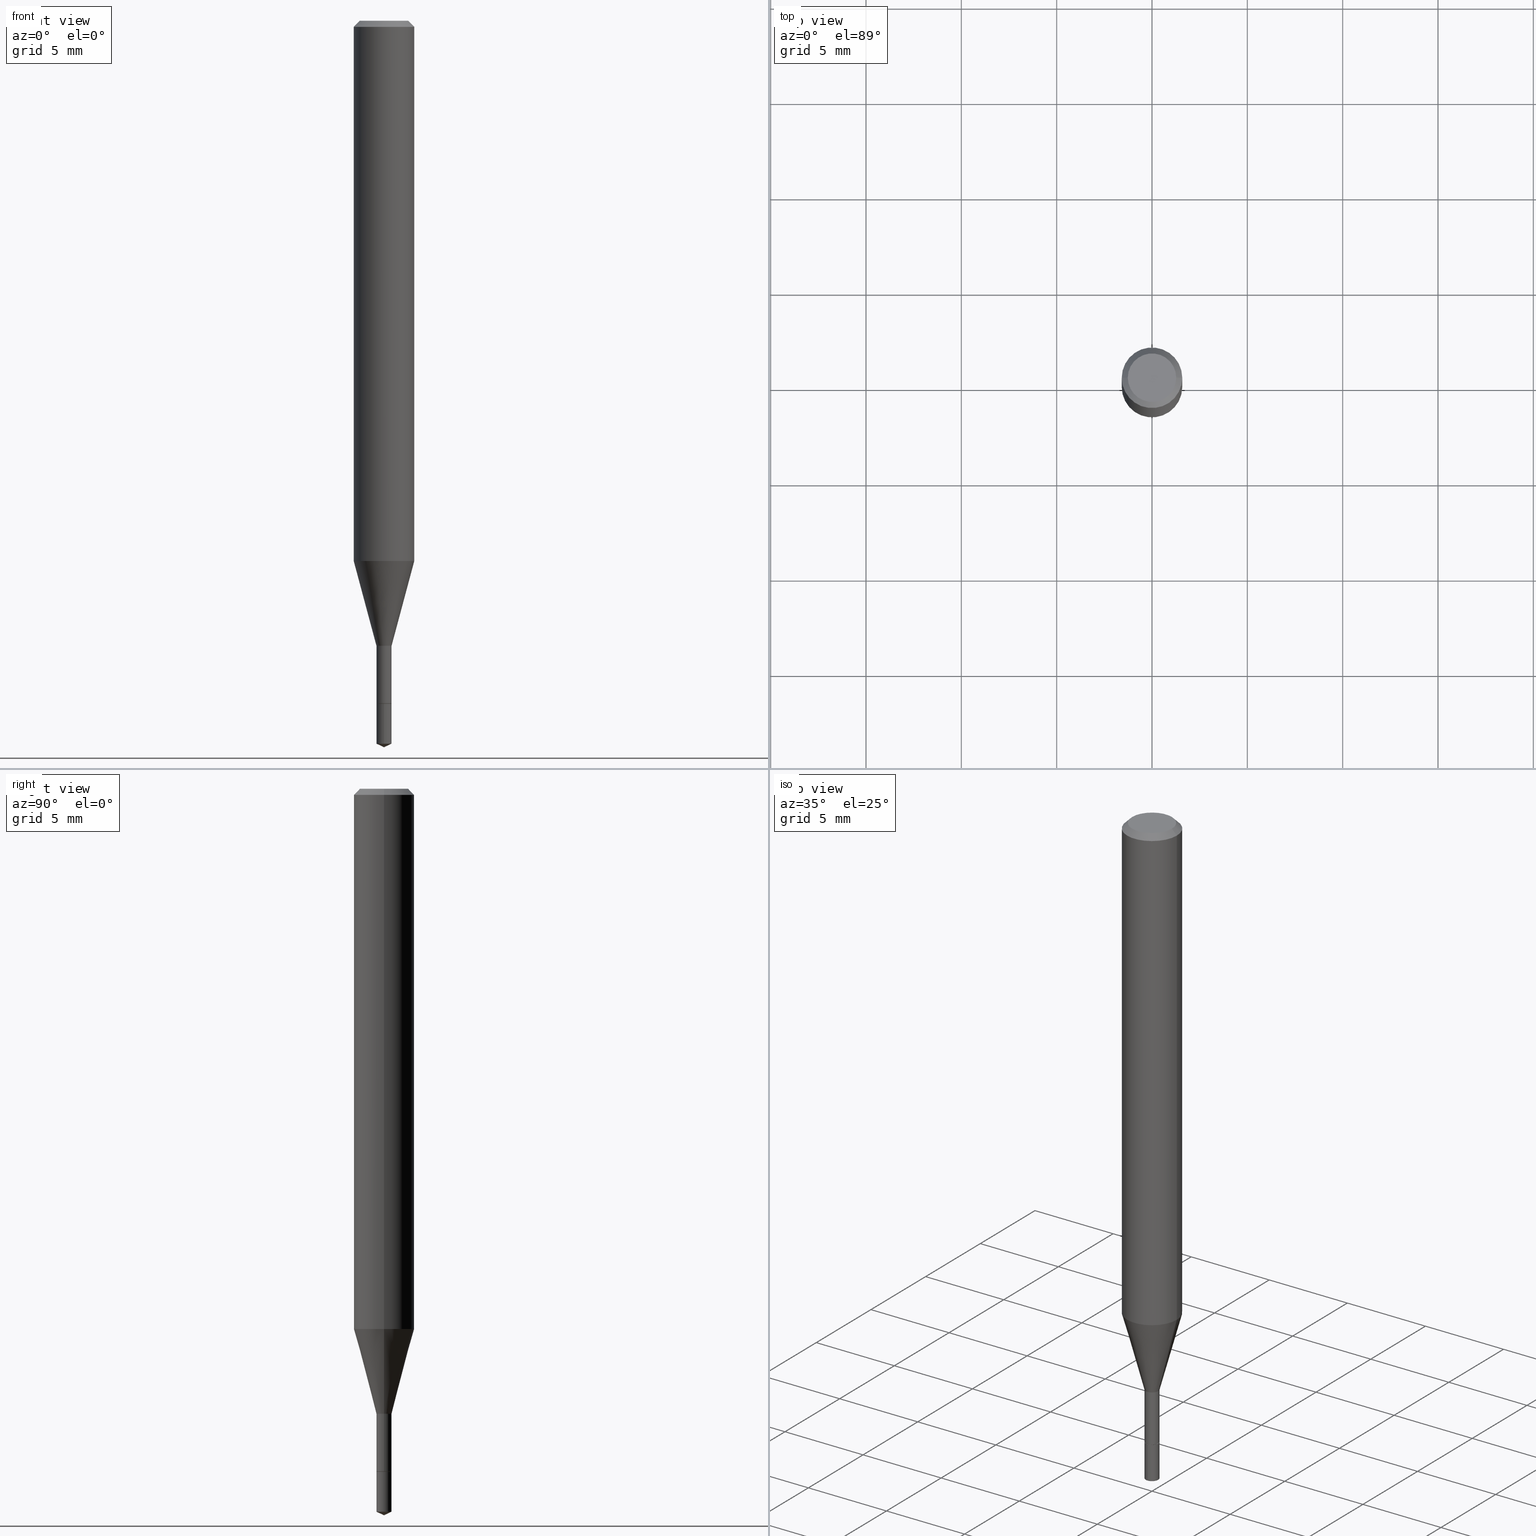
[diagram: canonical four-view strip — front | top / right | iso, engineering-drawing reading convention]
A machine part, canonical four-view strip (front | top / right | iso — engineering-drawing reading convention). The complete STEP part file that produces these views, byte-faithful:
ISO-10303-21;
HEADER;
FILE_DESCRIPTION (( 'STEP AP203' ),
    '1' );
FILE_NAME ('07029.STEP',
    '2024-04-23T19:19:45',
    ( '' ),
    ( '' ),
    'SwSTEP 2.0',
    'SolidWorks 2023',
    '' );
FILE_SCHEMA (( 'CONFIG_CONTROL_DESIGN' ));
ENDSEC;

DATA;
#1 = FACE_OUTER_BOUND ( 'NONE', #448, .T. ) ;
#2 = VERTEX_POINT ( 'NONE', #333 ) ;
#3 = PERSON_AND_ORGANIZATION ( #251, #125 ) ;
#4 = DIRECTION ( 'NONE',  ( 1.000000000000000000, -6.982962677686286432E-15, 0.000000000000000000 ) ) ;
#5 = FACE_OUTER_BOUND ( 'NONE', #71, .T. ) ;
#6 = ORIENTED_EDGE ( 'NONE', *, *, #415, .T. ) ;
#7 = CONICAL_SURFACE ( 'NONE', #182, 84.42940631927521622, 1.134464013796320003 ) ;
#8 = CYLINDRICAL_SURFACE ( 'NONE', #478, 0.01559999999999998888 ) ;
#9 = ORIENTED_EDGE ( 'NONE', *, *, #43, .F. ) ;
#10 = EDGE_CURVE ( 'NONE', #364, #250, #381, .T. ) ;
#11 = CARTESIAN_POINT ( 'NONE',  ( 3.056836007731441853E-31, -4.364351673553962300E-17, -0.01250000000000008570 ) ) ;
#12 = FACE_OUTER_BOUND ( 'NONE', #239, .T. ) ;
#13 = AXIS2_PLACEMENT_3D ( 'NONE', #198, #393, #49 ) ;
#14 = APPROVAL ( #88, 'UNSPECIFIED' ) ;
#15 = FACE_OUTER_BOUND ( 'NONE', #119, .T. ) ;
#16 = CARTESIAN_POINT ( 'NONE',  ( 1.946643104841063088E-47, -2.779290439833033990E-33, -7.960204194457798443E-19 ) ) ;
#17 = APPROVAL_DATE_TIME ( #354, #371 ) ;
#18 = AXIS2_PLACEMENT_3D ( 'NONE', #65, #101, #410 ) ;
#19 = ORIENTED_EDGE ( 'NONE', *, *, #292, .T. ) ;
#20 = EDGE_CURVE ( 'NONE', #477, #180, #115, .T. ) ;
#21 = APPLICATION_CONTEXT ( 'configuration controlled 3d designs of mechanical parts and assemblies' ) ;
#22 = CARTESIAN_POINT ( 'NONE',  ( 0.01559999999999998367, -4.615040033682871428E-15, -1.290600000000000414 ) ) ;
#23 = APPROVAL_DATE_TIME ( #210, #14 ) ;
#24 = FACE_OUTER_BOUND ( 'NONE', #97, .T. ) ;
#25 = CIRCLE ( 'NONE', #382, 0.06250000000000000000 ) ;
#26 = EDGE_CURVE ( 'NONE', #30, #456, #44, .T. ) ;
#27 = VERTEX_POINT ( 'NONE', #56 ) ;
#28 = LOCAL_TIME ( 15, 19, 45.00000000000000000, #362 ) ;
#29 = DIRECTION ( 'NONE',  ( 6.982962677686265922E-15, 1.000000000000000000, -3.505510882807285658E-15 ) ) ;
#30 = VERTEX_POINT ( 'NONE', #208 ) ;
#31 = EDGE_LOOP ( 'NONE', ( #106, #6, #225, #54 ) ) ;
#32 = DIRECTION ( 'NONE',  ( -6.982962677686265922E-15, -1.000000000000000000, 0.000000000000000000 ) ) ;
#33 = ORIENTED_EDGE ( 'NONE', *, *, #323, .T. ) ;
#34 = DESIGN_CONTEXT ( 'detailed design', #21, 'design' ) ;
#35 = ADVANCED_FACE ( 'NONE', ( #12 ), #465, .F. ) ;
#36 = CARTESIAN_POINT ( 'NONE',  ( 3.056836007731441853E-31, -4.364351673553962300E-17, -0.01250000000000008570 ) ) ;
#37 = VECTOR ( 'NONE', #423, 39.37007874015748143 ) ;
#38 = CARTESIAN_POINT ( 'NONE',  ( 3.681377211915869878E-29, -5.218703010232054902E-15, -1.500000000000000444 ) ) ;
#39 = ORIENTED_EDGE ( 'NONE', *, *, #26, .F. ) ;
#40 = DIRECTION ( 'NONE',  ( 6.439704144417041397E-15, 0.9063077870366539335, 0.4226182617406910591 ) ) ;
#41 = DIRECTION ( 'NONE',  ( -2.445468806185136877E-29, 3.491481338843145188E-15, 1.000000000000000000 ) ) ;
#42 = CARTESIAN_POINT ( 'NONE',  ( 2.728083852494474973E-29, -3.894980724224650610E-15, -1.115566817125019927 ) ) ;
#43 = EDGE_CURVE ( 'NONE', #400, #358, #390, .T. ) ;
#44 = CIRCLE ( 'NONE', #133, 0.01560000000000000102 ) ;
#45 = VECTOR ( 'NONE', #446, 39.37007874015748854 ) ;
#46 = SECURITY_CLASSIFICATION ( '', '', #342 ) ;
#47 = DIRECTION ( 'NONE',  ( -2.445468806185136597E-29, 3.491481338843145583E-15, 1.000000000000000000 ) ) ;
#48 = EDGE_LOOP ( 'NONE', ( #260, #274, #176, #139 ) ) ;
#49 = DIRECTION ( 'NONE',  ( 1.000000000000000000, -6.982962677686248567E-15, 0.000000000000000000 ) ) ;
#50 = PERSON_AND_ORGANIZATION ( #251, #125 ) ;
#51 = AXIS2_PLACEMENT_3D ( 'NONE', #42, #87, #363 ) ;
#52 = CIRCLE ( 'NONE', #290, 0.04999999999999999584 ) ;
#53 = ORIENTED_EDGE ( 'NONE', *, *, #339, .T. ) ;
#54 = ORIENTED_EDGE ( 'NONE', *, *, #140, .F. ) ;
#55 = CARTESIAN_POINT ( 'NONE',  ( 0.000000000000000000, 0.000000000000000000, 0.000000000000000000 ) ) ;
#56 = CARTESIAN_POINT ( 'NONE',  ( -0.06250000000000000000, -1.525222910630031483E-15, -0.01250000000000008570 ) ) ;
#57 = DIRECTION ( 'NONE',  ( 1.000000000000000000, -6.982962677686248567E-15, 0.000000000000000000 ) ) ;
#58 = ADVANCED_FACE ( 'NONE', ( #315 ), #367, .T. ) ;
#59 = AXIS2_PLACEMENT_3D ( 'NONE', #60, #262, #29 ) ;
#60 = CARTESIAN_POINT ( 'NONE',  ( 3.448111016721043790E-29, -4.922988687768837279E-15, -1.410000000000000586 ) ) ;
#61 = ORIENTED_EDGE ( 'NONE', *, *, #386, .F. ) ;
#62 = LINE ( 'NONE', #375, #412 ) ;
#63 = APPROVAL ( #264, 'UNSPECIFIED' ) ;
#64 = ORIENTED_EDGE ( 'NONE', *, *, #440, .T. ) ;
#65 = CARTESIAN_POINT ( 'NONE',  ( 3.893286209682126177E-47, -5.558580879666067980E-33, -1.592040838891559689E-18 ) ) ;
#66 = AXIS2_PLACEMENT_3D ( 'NONE', #253, #215, #370 ) ;
#67 = LINE ( 'NONE', #288, #309 ) ;
#68 = ADVANCED_BREP_SHAPE_REPRESENTATION ( '07029', ( #186, #196, #245 ), #221 ) ;
#69 = EDGE_LOOP ( 'NONE', ( #408, #80, #295, #33 ) ) ;
#70 = DIRECTION ( 'NONE',  ( -2.435672027996482102E-29, 3.505510882807285264E-15, 1.000000000000000000 ) ) ;
#71 = EDGE_LOOP ( 'NONE', ( #261, #312 ) ) ;
#72 = DATE_AND_TIME ( #99, #356 ) ;
#73 = ADVANCED_FACE ( 'NONE', ( #444 ), #100, .T. ) ;
#74 = DIRECTION ( 'NONE',  ( 1.000000000000000000, -6.982962677686266711E-15, 4.876176775795935232E-29 ) ) ;
#75 = CARTESIAN_POINT ( 'NONE',  ( 0.01559999999999998367, -4.615040033682871428E-15, -1.290600000000000414 ) ) ;
#76 = CARTESIAN_POINT ( 'NONE',  ( 3.446888282317950988E-29, -4.921242947099414987E-15, -1.409500000000000419 ) ) ;
#77 = CC_DESIGN_PERSON_AND_ORGANIZATION_ASSIGNMENT ( #451, #152, ( #331 ) ) ;
#78 = ORIENTED_EDGE ( 'NONE', *, *, #308, .T. ) ;
#79 = LINE ( 'NONE', #159, #257 ) ;
#80 = ORIENTED_EDGE ( 'NONE', *, *, #346, .F. ) ;
#81 = CONICAL_SURFACE ( 'NONE', #191, 0.01559999999999998367, 0.2617993877991499629 ) ;
#82 = FACE_OUTER_BOUND ( 'NONE', #344, .T. ) ;
#83 = ORIENTED_EDGE ( 'NONE', *, *, #402, .T. ) ;
#84 = ADVANCED_FACE ( 'NONE', ( #177 ), #161, .T. ) ;
#85 = ORIENTED_EDGE ( 'NONE', *, *, #43, .T. ) ;
#86 = DIRECTION ( 'NONE',  ( -2.445468806185136597E-29, 3.491481338843145583E-15, 1.000000000000000000 ) ) ;
#87 = DIRECTION ( 'NONE',  ( -2.445468806185136597E-29, 3.491481338843145583E-15, 1.000000000000000000 ) ) ;
#88 = APPROVAL_STATUS ( 'not_yet_approved' ) ;
#89 = VECTOR ( 'NONE', #40, 39.37007874015748854 ) ;
#90 = APPLICATION_PROTOCOL_DEFINITION ( 'international standard', 'config_control_design', 1994, #256 ) ;
#91 = EDGE_CURVE ( 'NONE', #263, #30, #112, .T. ) ;
#92 = LINE ( 'NONE', #169, #132 ) ;
#93 = PRODUCT ( '07029', '07029', '', ( #241 ) ) ;
#94 = ORIENTED_EDGE ( 'NONE', *, *, #199, .T. ) ;
#95 = DIRECTION ( 'NONE',  ( -6.982962677686265922E-15, -1.000000000000000000, 0.000000000000000000 ) ) ;
#96 = VECTOR ( 'NONE', #302, 39.37007874015748854 ) ;
#97 = EDGE_LOOP ( 'NONE', ( #417, #83, #361, #113 ) ) ;
#98 = ADVANCED_FACE ( 'NONE', ( #5 ), #212, .F. ) ;
#99 = CALENDAR_DATE ( 2024, 23, 4 ) ;
#100 = CYLINDRICAL_SURFACE ( 'NONE', #365, 0.01559999999999999928 ) ;
#101 = DIRECTION ( 'NONE',  ( -2.445468806185136597E-29, 3.491481338843145583E-15, 1.000000000000000000 ) ) ;
#102 = ORIENTED_EDGE ( 'NONE', *, *, #308, .F. ) ;
#103 = PLANE ( 'NONE',  #59 ) ;
#104 = CARTESIAN_POINT ( 'NONE',  ( -9.222527802817983362E-28, 1.327737548133802843E-13, 37.87007874015748143 ) ) ;
#105 = CIRCLE ( 'NONE', #269, 0.01559999999999999235 ) ;
#106 = ORIENTED_EDGE ( 'NONE', *, *, #20, .T. ) ;
#107 = LOCAL_TIME ( 15, 19, 45.00000000000000000, #226 ) ;
#108 = DIRECTION ( 'NONE',  ( -6.982962677686266711E-15, -1.000000000000000000, 3.520397390770417188E-15 ) ) ;
#109 = PRODUCT_DEFINITION ( 'UNKNOWN', '', #331, #34 ) ;
#110 = PERSON_AND_ORGANIZATION ( #251, #125 ) ;
#111 = LINE ( 'NONE', #271, #276 ) ;
#112 = LINE ( 'NONE', #384, #37 ) ;
#113 = ORIENTED_EDGE ( 'NONE', *, *, #430, .F. ) ;
#114 = CARTESIAN_POINT ( 'NONE',  ( 0.01559999999999998888, -1.089342177719056807E-16, 7.606835770241653944E-31 ) ) ;
#115 = CIRCLE ( 'NONE', #329, 0.01510000000000000231 ) ;
#116 = CONICAL_SURFACE ( 'NONE', #150, 0.06250000000000000000, 0.7853981633974450594 ) ;
#117 = EDGE_CURVE ( 'NONE', #2, #340, #149, .T. ) ;
#118 = CARTESIAN_POINT ( 'NONE',  ( 3.446888282317950988E-29, -4.921242947099414987E-15, -1.409500000000000419 ) ) ;
#119 = EDGE_LOOP ( 'NONE', ( #426, #282, #165, #336 ) ) ;
#120 = CARTESIAN_POINT ( 'NONE',  ( 3.448111016721044350E-29, -4.922988687768838068E-15, -1.410000000000000808 ) ) ;
#121 = DIRECTION ( 'NONE',  ( 1.000000000000000000, -6.982962677686290376E-15, 0.000000000000000000 ) ) ;
#122 = CARTESIAN_POINT ( 'NONE',  ( 0.000000000000000000, 0.000000000000000000, 0.000000000000000000 ) ) ;
#123 = ORIENTED_EDGE ( 'NONE', *, *, #206, .T. ) ;
#124 = AXIS2_PLACEMENT_3D ( 'NONE', #104, #222, #108 ) ;
#125 = ORGANIZATION ( 'UNSPECIFIED', 'UNSPECIFIED', '' ) ;
#126 = APPROVAL_ROLE ( '' ) ;
#127 = EDGE_LOOP ( 'NONE', ( #416, #85, #19, #489 ) ) ;
#128 =( LENGTH_UNIT ( ) NAMED_UNIT ( * ) SI_UNIT ( $, .METRE. ) );
#129 = LENGTH_MEASURE_WITH_UNIT ( LENGTH_MEASURE( 0.02539999999999999897 ), #128 );
#130 = AXIS2_PLACEMENT_3D ( 'NONE', #200, #383, #352 ) ;
#131 = EDGE_CURVE ( 'NONE', #456, #340, #332, .T. ) ;
#132 = VECTOR ( 'NONE', #135, 39.37007874015748143 ) ;
#133 = AXIS2_PLACEMENT_3D ( 'NONE', #313, #316, #470 ) ;
#134 = DIRECTION ( 'NONE',  ( -1.000000000000000000, 6.982962677686265922E-15, -4.876176775795935793E-29 ) ) ;
#135 = DIRECTION ( 'NONE',  ( 0.7071067811865452413, -7.319954787623248157E-15, -0.7071067811865497932 ) ) ;
#136 = DIRECTION ( 'NONE',  ( -2.445468806185136597E-29, 3.491481338843145583E-15, 1.000000000000000000 ) ) ;
#137 = EDGE_LOOP ( 'NONE', ( #235, #255, #39 ) ) ;
#138 = DIRECTION ( 'NONE',  ( -2.435672027996482102E-29, 3.505510882807285658E-15, 1.000000000000000000 ) ) ;
#139 = ORIENTED_EDGE ( 'NONE', *, *, #292, .F. ) ;
#140 = EDGE_CURVE ( 'NONE', #477, #387, #450, .T. ) ;
#141 = CLOSED_SHELL ( 'NONE', ( #227, #185, #233, #73, #155 ) ) ;
#142 = CARTESIAN_POINT ( 'NONE',  ( 3.653508041994724135E-29, -5.258266324210929277E-15, -1.500000000000000444 ) ) ;
#143 = CIRCLE ( 'NONE', #18, 0.04999999999999999584 ) ;
#144 = DIRECTION ( 'NONE',  ( 0.7071067811862260521, -2.468850131078890202E-15, 0.7071067811868688713 ) ) ;
#145 = DIRECTION ( 'NONE',  ( 1.000000000000000000, -6.982962677686265922E-15, 4.876176775795935793E-29 ) ) ;
#146 = EDGE_LOOP ( 'NONE', ( #236, #94 ) ) ;
#147 = FACE_OUTER_BOUND ( 'NONE', #320, .T. ) ;
#148 = EDGE_CURVE ( 'NONE', #162, #27, #338, .T. ) ;
#149 = CIRCLE ( 'NONE', #487, 0.01559999999999999928 ) ;
#150 = AXIS2_PLACEMENT_3D ( 'NONE', #11, #306, #460 ) ;
#151 = CARTESIAN_POINT ( 'NONE',  ( 0.01559999999999999235, -5.030177164871321543E-15, -1.409500000000000419 ) ) ;
#152 = PERSON_AND_ORGANIZATION_ROLE ( 'design_supplier' ) ;
#153 = CARTESIAN_POINT ( 'NONE',  ( 3.893286209682126177E-47, -5.558580879666067980E-33, -1.592040838891559689E-18 ) ) ;
#154 = APPROVAL_ROLE ( '' ) ;
#155 = ADVANCED_FACE ( 'NONE', ( #224 ), #103, .F. ) ;
#156 = CARTESIAN_POINT ( 'NONE',  ( 3.056836007731441853E-31, -4.364351673553962300E-17, -0.01250000000000008570 ) ) ;
#157 = EDGE_LOOP ( 'NONE', ( #179, #53, #324, #247 ) ) ;
#158 = CONICAL_SURFACE ( 'NONE', #436, 0.01510000000000000231, 0.7853981633969937537 ) ;
#159 = CARTESIAN_POINT ( 'NONE',  ( -0.01510000000000000231, -4.815696734669062924E-15, -1.410000000000000808 ) ) ;
#160 = DIRECTION ( 'NONE',  ( -2.445468806185136597E-29, 3.491481338843145583E-15, 1.000000000000000000 ) ) ;
#161 = CYLINDRICAL_SURFACE ( 'NONE', #211, 0.06250000000000006939 ) ;
#162 = VERTEX_POINT ( 'NONE', #418 ) ;
#163 = DIRECTION ( 'NONE',  ( 1.000000000000000000, 0.000000000000000000, 0.000000000000000000 ) ) ;
#164 = EDGE_CURVE ( 'NONE', #364, #400, #326, .T. ) ;
#165 = ORIENTED_EDGE ( 'NONE', *, *, #140, .T. ) ;
#166 = COORDINATED_UNIVERSAL_TIME_OFFSET ( 5, 0, .BEHIND. ) ;
#167 = CARTESIAN_POINT ( 'NONE',  ( 0.000000000000000000, 0.000000000000000000, 0.000000000000000000 ) ) ;
#168 = EDGE_CURVE ( 'NONE', #400, #27, #67, .T. ) ;
#169 = CARTESIAN_POINT ( 'NONE',  ( 0.06250000000000000000, -4.724246415962603826E-16, -0.01250000000000008570 ) ) ;
#170 = DIRECTION ( 'NONE',  ( 2.438088387897960049E-29, -3.491481338843145188E-15, -1.000000000000000000 ) ) ;
#171 = ORIENTED_EDGE ( 'NONE', *, *, #346, .T. ) ;
#172 = PERSON_AND_ORGANIZATION ( #251, #125 ) ;
#173 = VECTOR ( 'NONE', #41, 39.37007874015748143 ) ;
#174 = CONICAL_SURFACE ( 'NONE', #197, 0.01510000000000000231, 0.7853981633969937537 ) ;
#175 = CC_DESIGN_PERSON_AND_ORGANIZATION_ASSIGNMENT ( #172, #322, ( #109 ) ) ;
#176 = ORIENTED_EDGE ( 'NONE', *, *, #206, .F. ) ;
#177 = FACE_OUTER_BOUND ( 'NONE', #127, .T. ) ;
#178 = CARTESIAN_POINT ( 'NONE',  ( 3.649603447937951883E-29, -5.212984180723273227E-15, -1.492725600532782471 ) ) ;
#179 = ORIENTED_EDGE ( 'NONE', *, *, #402, .F. ) ;
#180 = VERTEX_POINT ( 'NONE', #441 ) ;
#181 = AXIS2_PLACEMENT_3D ( 'NONE', #474, #469, #283 ) ;
#182 = AXIS2_PLACEMENT_3D ( 'NONE', #246, #373, #407 ) ;
#183 = DIRECTION ( 'NONE',  ( 1.000000000000000000, -6.982962677686266711E-15, 0.000000000000000000 ) ) ;
#184 = FACE_OUTER_BOUND ( 'NONE', #481, .T. ) ;
#185 = ADVANCED_FACE ( 'NONE', ( #447 ), #238, .T. ) ;
#186 = MANIFOLD_SOLID_BREP ( 'Body-Move/Copy2[1]', #141 ) ;
#187 = DIRECTION ( 'NONE',  ( -0.7071067811865452413, 2.468850131082233000E-15, -0.7071067811865497932 ) ) ;
#188 = DIRECTION ( 'NONE',  ( -2.435672027996482102E-29, 3.505510882807285264E-15, 1.000000000000000000 ) ) ;
#189 = CLOSED_SHELL ( 'NONE', ( #395, #454, #58, #461, #304, #490, #379, #84, #243, #35, #98, #467 ) ) ;
#190 = AXIS2_PLACEMENT_3D ( 'NONE', #483, #70, #95 ) ;
#191 = AXIS2_PLACEMENT_3D ( 'NONE', #314, #277, #473 ) ;
#192 = COORDINATED_UNIVERSAL_TIME_OFFSET ( 5, 0, .BEHIND. ) ;
#193 = LINE ( 'NONE', #299, #350 ) ;
#194 = CARTESIAN_POINT ( 'NONE',  ( 0.06250000000000000000, -4.800786840909313294E-16, -0.01250000000000008570 ) ) ;
#195 = CARTESIAN_POINT ( 'NONE',  ( 0.06250000000000015266, -4.331415891580043857E-15, -1.115566817125019927 ) ) ;
#196 = MANIFOLD_SOLID_BREP ( 'Body-Move/Copy2[2]', #189 ) ;
#197 = AXIS2_PLACEMENT_3D ( 'NONE', #403, #432, #57 ) ;
#198 = CARTESIAN_POINT ( 'NONE',  ( 3.448111016721044350E-29, -4.922988687768838068E-15, -1.410000000000000808 ) ) ;
#199 = EDGE_CURVE ( 'NONE', #340, #2, #284, .T. ) ;
#200 = CARTESIAN_POINT ( 'NONE',  ( 2.728083852494474973E-29, -3.894980724224650610E-15, -1.115566817125019927 ) ) ;
#201 = CALENDAR_DATE ( 2024, 23, 4 ) ;
#202 = DIRECTION ( 'NONE',  ( 1.000000000000000000, -6.982962677686248567E-15, 0.000000000000000000 ) ) ;
#203 = VECTOR ( 'NONE', #144, 39.37007874015748854 ) ;
#204 = AXIS2_PLACEMENT_3D ( 'NONE', #167, #86, #357 ) ;
#205 = APPROVAL_ROLE ( '' ) ;
#206 = EDGE_CURVE ( 'NONE', #349, #27, #337, .T. ) ;
#207 = DATE_AND_TIME ( #311, #351 ) ;
#208 = CARTESIAN_POINT ( 'NONE',  ( -1.089342177718692699E-16, -0.01560000000000521907, -1.492725600532782471 ) ) ;
#209 = PERSON_AND_ORGANIZATION ( #251, #125 ) ;
#210 = DATE_AND_TIME ( #359, #479 ) ;
#211 = AXIS2_PLACEMENT_3D ( 'NONE', #122, #300, #453 ) ;
#212 = PLANE ( 'NONE',  #366 ) ;
#213 = APPROVAL_DATE_TIME ( #216, #63 ) ;
#214 = CARTESIAN_POINT ( 'NONE',  ( 3.448111016721043790E-29, -4.922988687768837279E-15, -1.410000000000000586 ) ) ;
#215 = DIRECTION ( 'NONE',  ( 2.445468806185136597E-29, -3.491481338843145583E-15, -1.000000000000000000 ) ) ;
#216 = DATE_AND_TIME ( #409, #107 ) ;
#217 = DIRECTION ( 'NONE',  ( -2.445468806185136877E-29, 3.491481338843145188E-15, 1.000000000000000000 ) ) ;
#218 = ORIENTED_EDGE ( 'NONE', *, *, #164, .F. ) ;
#219 = AXIS2_PLACEMENT_3D ( 'NONE', #76, #425, #452 ) ;
#220 = FACE_OUTER_BOUND ( 'NONE', #69, .T. ) ;
#221 =( GEOMETRIC_REPRESENTATION_CONTEXT ( 3 ) GLOBAL_UNCERTAINTY_ASSIGNED_CONTEXT ( ( #265 ) ) GLOBAL_UNIT_ASSIGNED_CONTEXT ( ( #285, #433, #438 ) ) REPRESENTATION_CONTEXT ( 'NONE', 'WORKASPACE' ) );
#222 = DIRECTION ( 'NONE',  ( -2.435672027996482102E-29, 3.505510882807285264E-15, 1.000000000000000000 ) ) ;
#223 = ORIENTED_EDGE ( 'NONE', *, *, #286, .T. ) ;
#224 = FACE_OUTER_BOUND ( 'NONE', #146, .T. ) ;
#225 = ORIENTED_EDGE ( 'NONE', *, *, #406, .F. ) ;
#226 = COORDINATED_UNIVERSAL_TIME_OFFSET ( 5, 0, .BEHIND. ) ;
#227 = ADVANCED_FACE ( 'NONE', ( #184 ), #335, .T. ) ;
#228 = CARTESIAN_POINT ( 'NONE',  ( 1.108446667786121334E-16, 0.01559999999999507440, -1.410000000000000586 ) ) ;
#229 = CARTESIAN_POINT ( 'NONE',  ( -0.01559999999999998367, -4.602829714726614675E-15, -1.290600000000000414 ) ) ;
#230 = CARTESIAN_POINT ( 'NONE',  ( 0.04999999999999999584, -4.077247707424184705E-16, -1.592040838888913461E-18 ) ) ;
#231 = DIRECTION ( 'NONE',  ( -2.435672027996482102E-29, 3.505510882807285658E-15, 1.000000000000000000 ) ) ;
#232 = AXIS2_PLACEMENT_3D ( 'NONE', #234, #341, #459 ) ;
#233 = ADVANCED_FACE ( 'NONE', ( #147 ), #7, .T. ) ;
#234 = CARTESIAN_POINT ( 'NONE',  ( 3.156122041262538513E-29, -4.506105815910965661E-15, -1.290600000000000414 ) ) ;
#235 = ORIENTED_EDGE ( 'NONE', *, *, #91, .F. ) ;
#236 = ORIENTED_EDGE ( 'NONE', *, *, #117, .T. ) ;
#237 = CC_DESIGN_PERSON_AND_ORGANIZATION_ASSIGNMENT ( #110, #330, ( #46 ) ) ;
#238 = CONICAL_SURFACE ( 'NONE', #124, 84.42940631927521622, 1.134464013796320003 ) ;
#239 = EDGE_LOOP ( 'NONE', ( #171, #223 ) ) ;
#240 = PERSON_AND_ORGANIZATION ( #251, #125 ) ;
#241 = MECHANICAL_CONTEXT ( 'NONE', #256, 'mechanical' ) ;
#242 = DIRECTION ( 'NONE',  ( 0.000000000000000000, 0.000000000000000000, 1.000000000000000000 ) ) ;
#243 = ADVANCED_FACE ( 'NONE', ( #220 ), #355, .T. ) ;
#244 = SHAPE_DEFINITION_REPRESENTATION ( #437, #68 ) ;
#245 = AXIS2_PLACEMENT_3D ( 'NONE', #55, #242, #163 ) ;
#246 = CARTESIAN_POINT ( 'NONE',  ( -9.222527802817983362E-28, 1.327737548133802843E-13, 37.87007874015748143 ) ) ;
#247 = ORIENTED_EDGE ( 'NONE', *, *, #10, .F. ) ;
#248 = DATE_TIME_ROLE ( 'classification_date' ) ;
#249 = CARTESIAN_POINT ( 'NONE',  ( 3.448111016721043790E-29, -4.922988687768837279E-15, -1.410000000000000586 ) ) ;
#250 = VERTEX_POINT ( 'NONE', #22 ) ;
#251 = PERSON ( 'UNSPECIFIED', 'UNSPECIFIED', 'UNSPECIFIED', ('UNSPECIFIED'), ('UNSPECIFIED'), ('UNSPECIFIED') ) ;
#252 = ORIENTED_EDGE ( 'NONE', *, *, #131, .F. ) ;
#253 = CARTESIAN_POINT ( 'NONE',  ( 3.056836007731441853E-31, -4.364351673553962300E-17, -0.01250000000000008570 ) ) ;
#254 = EDGE_CURVE ( 'NONE', #456, #30, #297, .T. ) ;
#255 = ORIENTED_EDGE ( 'NONE', *, *, #386, .T. ) ;
#256 = APPLICATION_CONTEXT ( 'configuration controlled 3d designs of mechanical parts and assemblies' ) ;
#257 = VECTOR ( 'NONE', #305, 39.37007874015748854 ) ;
#258 = DIRECTION ( 'NONE',  ( -2.445468806185136597E-29, 3.491481338843145583E-15, 1.000000000000000000 ) ) ;
#259 = APPROVAL_PERSON_ORGANIZATION ( #240, #14, #205 ) ;
#260 = ORIENTED_EDGE ( 'NONE', *, *, #360, .T. ) ;
#261 = ORIENTED_EDGE ( 'NONE', *, *, #20, .F. ) ;
#262 = DIRECTION ( 'NONE',  ( 2.435672027996481262E-29, -3.505510882807285658E-15, -1.000000000000000000 ) ) ;
#263 = VERTEX_POINT ( 'NONE', #142 ) ;
#264 = APPROVAL_STATUS ( 'not_yet_approved' ) ;
#265 = UNCERTAINTY_MEASURE_WITH_UNIT (LENGTH_MEASURE( 1.000000000000000082E-05 ), #285, 'distance_accuracy_value', 'NONE');
#266 = DIRECTION ( 'NONE',  ( -2.445468806185136877E-29, 3.491481338843145188E-15, 1.000000000000000000 ) ) ;
#267 = DIRECTION ( 'NONE',  ( 1.000000000000000000, -6.982962677686265922E-15, 4.875957971899673662E-29 ) ) ;
#268 = AXIS2_PLACEMENT_3D ( 'NONE', #16, #170, #134 ) ;
#269 = AXIS2_PLACEMENT_3D ( 'NONE', #118, #419, #4 ) ;
#270 = FACE_OUTER_BOUND ( 'NONE', #31, .T. ) ;
#271 = CARTESIAN_POINT ( 'NONE',  ( -1.089342177718712543E-16, -0.01560000000000492243, -1.410000000000000586 ) ) ;
#272 = CARTESIAN_POINT ( 'NONE',  ( 0.000000000000000000, 0.000000000000000000, 0.000000000000000000 ) ) ;
#273 = PRODUCT_RELATED_PRODUCT_CATEGORY ( 'detail', '', ( #93 ) ) ;
#274 = ORIENTED_EDGE ( 'NONE', *, *, #168, .T. ) ;
#275 = VECTOR ( 'NONE', #187, 39.37007874015748143 ) ;
#276 = VECTOR ( 'NONE', #231, 39.37007874015748143 ) ;
#277 = DIRECTION ( 'NONE',  ( -2.445468806185136597E-29, 3.491481338843145583E-15, 1.000000000000000000 ) ) ;
#278 = CC_DESIGN_DATE_AND_TIME_ASSIGNMENT ( #207, #466, ( #109 ) ) ;
#279 = CARTESIAN_POINT ( 'NONE',  ( 0.01510000000000000231, -5.028431424201900828E-15, -1.410000000000000808 ) ) ;
#280 = VERTEX_POINT ( 'NONE', #291 ) ;
#281 = CARTESIAN_POINT ( 'NONE',  ( 3.156122041262538513E-29, -4.506105815910965661E-15, -1.290600000000000414 ) ) ;
#282 = ORIENTED_EDGE ( 'NONE', *, *, #328, .T. ) ;
#283 = DIRECTION ( 'NONE',  ( 1.000000000000000000, -6.982962677686266711E-15, 4.876176775795935793E-29 ) ) ;
#284 = CIRCLE ( 'NONE', #190, 0.01559999999999999928 ) ;
#285 =( CONVERSION_BASED_UNIT ( 'INCH', #129 ) LENGTH_UNIT ( ) NAMED_UNIT ( #485 ) );
#286 = EDGE_CURVE ( 'NONE', #327, #162, #143, .T. ) ;
#287 = ORIENTED_EDGE ( 'NONE', *, *, #117, .F. ) ;
#288 = CARTESIAN_POINT ( 'NONE',  ( -0.06250000000000006939, 4.440892098500631092E-16, -3.074334431409319267E-30 ) ) ;
#289 = PERSON_AND_ORGANIZATION ( #251, #125 ) ;
#290 = AXIS2_PLACEMENT_3D ( 'NONE', #153, #47, #267 ) ;
#291 = CARTESIAN_POINT ( 'NONE',  ( -0.01559999999999999235, -4.602829714726614675E-15, -1.409500000000000419 ) ) ;
#292 = EDGE_CURVE ( 'NONE', #358, #349, #62, .T. ) ;
#293 = CARTESIAN_POINT ( 'NONE',  ( -0.06250000000000000000, 3.927916506198520587E-16, -0.01250000000000008570 ) ) ;
#294 = CARTESIAN_POINT ( 'NONE',  ( 3.448111016721043790E-29, -4.922988687768837279E-15, -1.410000000000000586 ) ) ;
#295 = ORIENTED_EDGE ( 'NONE', *, *, #148, .T. ) ;
#296 = ORIENTED_EDGE ( 'NONE', *, *, #199, .F. ) ;
#297 = CIRCLE ( 'NONE', #319, 0.01560000000000000102 ) ;
#298 = DIRECTION ( 'NONE',  ( -2.435672027996482102E-29, 3.505510882807285264E-15, 1.000000000000000000 ) ) ;
#299 = CARTESIAN_POINT ( 'NONE',  ( -0.01559999999999998888, 1.108446667785755500E-16, -7.673538740797647234E-31 ) ) ;
#300 = DIRECTION ( 'NONE',  ( -2.445468806185136597E-29, 3.491481338843145583E-15, 1.000000000000000000 ) ) ;
#301 = CARTESIAN_POINT ( 'NONE',  ( 1.108446667786121580E-16, 0.01559999999999478991, -1.492725600532782471 ) ) ;
#302 = DIRECTION ( 'NONE',  ( 0.2588190451025212391, 1.565188264969622362E-15, 0.9659258262890679791 ) ) ;
#303 = AXIS2_PLACEMENT_3D ( 'NONE', #343, #160, #121 ) ;
#304 = ADVANCED_FACE ( 'NONE', ( #24 ), #8, .T. ) ;
#305 = DIRECTION ( 'NONE',  ( -0.7071067811862260521, 7.493145998869191379E-15, 0.7071067811868688713 ) ) ;
#306 = DIRECTION ( 'NONE',  ( 2.445468806185136597E-29, -3.491481338843145583E-15, -1.000000000000000000 ) ) ;
#307 = PERSON_AND_ORGANIZATION_ROLE ( 'design_owner' ) ;
#308 = EDGE_CURVE ( 'NONE', #250, #358, #385, .T. ) ;
#309 = VECTOR ( 'NONE', #380, 39.37007874015748143 ) ;
#310 = CC_DESIGN_APPROVAL ( #14, ( #331 ) ) ;
#311 = CALENDAR_DATE ( 2024, 23, 4 ) ;
#312 = ORIENTED_EDGE ( 'NONE', *, *, #328, .F. ) ;
#313 = CARTESIAN_POINT ( 'NONE',  ( 3.649603447937951883E-29, -5.212984180723273227E-15, -1.492725600532782471 ) ) ;
#314 = CARTESIAN_POINT ( 'NONE',  ( 3.156122041262538513E-29, -4.506105815910965661E-15, -1.290600000000000414 ) ) ;
#315 = FACE_OUTER_BOUND ( 'NONE', #48, .T. ) ;
#316 = DIRECTION ( 'NONE',  ( -2.435672027996482102E-29, 3.505510882807285264E-15, 1.000000000000000000 ) ) ;
#317 = ORIENTED_EDGE ( 'NONE', *, *, #360, .F. ) ;
#318 = DIRECTION ( 'NONE',  ( 1.000000000000000000, -6.982962677686290376E-15, 0.000000000000000000 ) ) ;
#319 = AXIS2_PLACEMENT_3D ( 'NONE', #178, #411, #476 ) ;
#320 = EDGE_LOOP ( 'NONE', ( #61, #434, #420 ) ) ;
#321 = APPROVAL_PERSON_ORGANIZATION ( #3, #63, #154 ) ;
#322 = PERSON_AND_ORGANIZATION_ROLE ( 'creator' ) ;
#323 = EDGE_CURVE ( 'NONE', #27, #349, #25, .T. ) ;
#324 = ORIENTED_EDGE ( 'NONE', *, *, #430, .T. ) ;
#325 = DIRECTION ( 'NONE',  ( -6.982962677686265922E-15, -1.000000000000000000, 0.000000000000000000 ) ) ;
#326 = LINE ( 'NONE', #378, #45 ) ;
#327 = VERTEX_POINT ( 'NONE', #230 ) ;
#328 = EDGE_CURVE ( 'NONE', #180, #477, #442, .T. ) ;
#329 = AXIS2_PLACEMENT_3D ( 'NONE', #404, #398, #202 ) ;
#330 = PERSON_AND_ORGANIZATION_ROLE ( 'classification_officer' ) ;
#331 = PRODUCT_DEFINITION_FORMATION_WITH_SPECIFIED_SOURCE ( 'ANY', '', #93, .NOT_KNOWN. ) ;
#332 = LINE ( 'NONE', #480, #428 ) ;
#333 = CARTESIAN_POINT ( 'NONE',  ( -1.089342177718712543E-16, -0.01560000000000492243, -1.410000000000000586 ) ) ;
#334 = CARTESIAN_POINT ( 'NONE',  ( -1.436494430713738511E-28, -3.043229776768017851E-14, -1.410000000000000586 ) ) ;
#335 = CYLINDRICAL_SURFACE ( 'NONE', #464, 0.01559999999999999928 ) ;
#336 = ORIENTED_EDGE ( 'NONE', *, *, #339, .F. ) ;
#337 = CIRCLE ( 'NONE', #405, 0.06250000000000000000 ) ;
#338 = LINE ( 'NONE', #293, #275 ) ;
#339 = EDGE_CURVE ( 'NONE', #280, #387, #105, .T. ) ;
#340 = VERTEX_POINT ( 'NONE', #228 ) ;
#341 = DIRECTION ( 'NONE',  ( -2.445468806185136597E-29, 3.491481338843145583E-15, 1.000000000000000000 ) ) ;
#342 = SECURITY_CLASSIFICATION_LEVEL ( 'unclassified' ) ;
#343 = CARTESIAN_POINT ( 'NONE',  ( 3.156122041262538513E-29, -4.506105815910965661E-15, -1.290600000000000414 ) ) ;
#344 = EDGE_LOOP ( 'NONE', ( #368, #345, #317, #102 ) ) ;
#345 = ORIENTED_EDGE ( 'NONE', *, *, #164, .T. ) ;
#346 = EDGE_CURVE ( 'NONE', #162, #327, #52, .T. ) ;
#347 = ORIENTED_EDGE ( 'NONE', *, *, #440, .F. ) ;
#348 = LINE ( 'NONE', #38, #89 ) ;
#349 = VERTEX_POINT ( 'NONE', #194 ) ;
#350 = VECTOR ( 'NONE', #266, 39.37007874015748143 ) ;
#351 = LOCAL_TIME ( 15, 19, 45.00000000000000000, #166 ) ;
#352 = DIRECTION ( 'NONE',  ( 1.000000000000000000, -6.982962677686270655E-15, 0.000000000000000000 ) ) ;
#353 = CC_DESIGN_PERSON_AND_ORGANIZATION_ASSIGNMENT ( #209, #307, ( #93 ) ) ;
#354 = DATE_AND_TIME ( #201, #28 ) ;
#355 = CONICAL_SURFACE ( 'NONE', #66, 0.06250000000000000000, 0.7853981633974450594 ) ;
#356 = LOCAL_TIME ( 15, 19, 45.00000000000000000, #192 ) ;
#357 = DIRECTION ( 'NONE',  ( 1.000000000000000000, -6.982962677686266711E-15, 4.876176775795935232E-29 ) ) ;
#358 = VERTEX_POINT ( 'NONE', #195 ) ;
#359 = CALENDAR_DATE ( 2024, 23, 4 ) ;
#360 = EDGE_CURVE ( 'NONE', #358, #400, #391, .T. ) ;
#361 = ORIENTED_EDGE ( 'NONE', *, *, #435, .F. ) ;
#362 = COORDINATED_UNIVERSAL_TIME_OFFSET ( 5, 0, .BEHIND. ) ;
#363 = DIRECTION ( 'NONE',  ( 1.000000000000000000, -6.982962677686270655E-15, 0.000000000000000000 ) ) ;
#364 = VERTEX_POINT ( 'NONE', #229 ) ;
#365 = AXIS2_PLACEMENT_3D ( 'NONE', #214, #369, #325 ) ;
#366 = AXIS2_PLACEMENT_3D ( 'NONE', #334, #414, #145 ) ;
#367 = CYLINDRICAL_SURFACE ( 'NONE', #181, 0.06250000000000006939 ) ;
#368 = ORIENTED_EDGE ( 'NONE', *, *, #435, .T. ) ;
#369 = DIRECTION ( 'NONE',  ( -2.435672027996482102E-29, 3.505510882807285264E-15, 1.000000000000000000 ) ) ;
#370 = DIRECTION ( 'NONE',  ( -1.000000000000000000, 6.982962677686266711E-15, 0.000000000000000000 ) ) ;
#371 = APPROVAL ( #463, 'UNSPECIFIED' ) ;
#372 = ORIENTED_EDGE ( 'NONE', *, *, #286, .F. ) ;
#373 = DIRECTION ( 'NONE',  ( -2.435672027996482102E-29, 3.505510882807285264E-15, 1.000000000000000000 ) ) ;
#374 = ORIENTED_EDGE ( 'NONE', *, *, #131, .T. ) ;
#375 = CARTESIAN_POINT ( 'NONE',  ( 0.06250000000000006939, -4.364351673553921624E-16, 3.047610484872463374E-30 ) ) ;
#376 = ORIENTED_EDGE ( 'NONE', *, *, #26, .T. ) ;
#377 = EDGE_LOOP ( 'NONE', ( #252, #462, #64, #296 ) ) ;
#378 = CARTESIAN_POINT ( 'NONE',  ( -0.01559999999999998367, -4.395261149132390407E-15, -1.290600000000000414 ) ) ;
#379 = ADVANCED_FACE ( 'NONE', ( #1 ), #397, .T. ) ;
#380 = DIRECTION ( 'NONE',  ( -2.445468806185136877E-29, 3.491481338843145188E-15, 1.000000000000000000 ) ) ;
#381 = CIRCLE ( 'NONE', #472, 0.01559999999999998367 ) ;
#382 = AXIS2_PLACEMENT_3D ( 'NONE', #156, #457, #455 ) ;
#383 = DIRECTION ( 'NONE',  ( -2.445468806185136597E-29, 3.491481338843145583E-15, 1.000000000000000000 ) ) ;
#384 = CARTESIAN_POINT ( 'NONE',  ( 3.653508041994724695E-29, -5.258266324210929277E-15, -1.500000000000000444 ) ) ;
#385 = LINE ( 'NONE', #75, #96 ) ;
#386 = EDGE_CURVE ( 'NONE', #263, #456, #348, .T. ) ;
#387 = VERTEX_POINT ( 'NONE', #151 ) ;
#388 = DIRECTION ( 'NONE',  ( -2.445468806185136597E-29, 3.491481338843145583E-15, 1.000000000000000000 ) ) ;
#389 = FACE_OUTER_BOUND ( 'NONE', #431, .T. ) ;
#390 = CIRCLE ( 'NONE', #51, 0.06250000000000013878 ) ;
#391 = CIRCLE ( 'NONE', #130, 0.06250000000000013878 ) ;
#392 = CC_DESIGN_APPROVAL ( #63, ( #46 ) ) ;
#393 = DIRECTION ( 'NONE',  ( -2.445468806185136597E-29, 3.491481338843145583E-15, 1.000000000000000000 ) ) ;
#394 = ORIENTED_EDGE ( 'NONE', *, *, #148, .F. ) ;
#395 = ADVANCED_FACE ( 'NONE', ( #270 ), #158, .T. ) ;
#396 = APPLICATION_PROTOCOL_DEFINITION ( 'international standard', 'config_control_design', 1994, #21 ) ;
#397 = CONICAL_SURFACE ( 'NONE', #303, 0.01559999999999998367, 0.2617993877991499629 ) ;
#398 = DIRECTION ( 'NONE',  ( -2.445468806185136597E-29, 3.491481338843145583E-15, 1.000000000000000000 ) ) ;
#399 = CC_DESIGN_SECURITY_CLASSIFICATION ( #46, ( #331 ) ) ;
#400 = VERTEX_POINT ( 'NONE', #427 ) ;
#401 = COORDINATED_UNIVERSAL_TIME_OFFSET ( 5, 0, .BEHIND. ) ;
#402 = EDGE_CURVE ( 'NONE', #280, #364, #193, .T. ) ;
#403 = CARTESIAN_POINT ( 'NONE',  ( 3.448111016721044350E-29, -4.922988687768838068E-15, -1.410000000000000808 ) ) ;
#404 = CARTESIAN_POINT ( 'NONE',  ( 3.448111016721044350E-29, -4.922988687768838068E-15, -1.410000000000000808 ) ) ;
#405 = AXIS2_PLACEMENT_3D ( 'NONE', #36, #258, #183 ) ;
#406 = EDGE_CURVE ( 'NONE', #387, #280, #471, .T. ) ;
#407 = DIRECTION ( 'NONE',  ( -6.982962677686266711E-15, -1.000000000000000000, 3.520397390770417188E-15 ) ) ;
#408 = ORIENTED_EDGE ( 'NONE', *, *, #475, .F. ) ;
#409 = CALENDAR_DATE ( 2024, 23, 4 ) ;
#410 = DIRECTION ( 'NONE',  ( 1.000000000000000000, -6.982962677686265922E-15, 4.875957971899673662E-29 ) ) ;
#411 = DIRECTION ( 'NONE',  ( -2.435672027996482102E-29, 3.505510882807285264E-15, 1.000000000000000000 ) ) ;
#412 = VECTOR ( 'NONE', #217, 39.37007874015748143 ) ;
#413 = CC_DESIGN_APPROVAL ( #371, ( #109 ) ) ;
#414 = DIRECTION ( 'NONE',  ( -2.438088387897960049E-29, 3.491481338843145188E-15, 1.000000000000000000 ) ) ;
#415 = EDGE_CURVE ( 'NONE', #180, #280, #79, .T. ) ;
#416 = ORIENTED_EDGE ( 'NONE', *, *, #168, .F. ) ;
#417 = ORIENTED_EDGE ( 'NONE', *, *, #406, .T. ) ;
#418 = CARTESIAN_POINT ( 'NONE',  ( -0.04999999999999999584, 3.709698922520826725E-16, -1.592040838894077649E-18 ) ) ;
#419 = DIRECTION ( 'NONE',  ( -2.445468806185136597E-29, 3.491481338843145583E-15, 1.000000000000000000 ) ) ;
#420 = ORIENTED_EDGE ( 'NONE', *, *, #254, .F. ) ;
#421 = CC_DESIGN_PERSON_AND_ORGANIZATION_ASSIGNMENT ( #289, #443, ( #331 ) ) ;
#422 = LINE ( 'NONE', #114, #173 ) ;
#423 = DIRECTION ( 'NONE',  ( -6.328713451373386733E-15, -0.9063077870366508249, 0.4226182617406973874 ) ) ;
#424 = DIRECTION ( 'NONE',  ( 1.000000000000000000, -6.982962677686248567E-15, 0.000000000000000000 ) ) ;
#425 = DIRECTION ( 'NONE',  ( -2.445468806185136597E-29, 3.491481338843145583E-15, 1.000000000000000000 ) ) ;
#426 = ORIENTED_EDGE ( 'NONE', *, *, #415, .F. ) ;
#427 = CARTESIAN_POINT ( 'NONE',  ( -0.06250000000000015266, -3.450891514374587205E-15, -1.115566817125019927 ) ) ;
#428 = VECTOR ( 'NONE', #138, 39.37007874015748143 ) ;
#429 = APPROVAL_PERSON_ORGANIZATION ( #50, #371, #126 ) ;
#430 = EDGE_CURVE ( 'NONE', #387, #250, #422, .T. ) ;
#431 = EDGE_LOOP ( 'NONE', ( #372, #484, #123, #394 ) ) ;
#432 = DIRECTION ( 'NONE',  ( -2.445468806185136597E-29, 3.491481338843145583E-15, 1.000000000000000000 ) ) ;
#433 =( NAMED_UNIT ( * ) PLANE_ANGLE_UNIT ( ) SI_UNIT ( $, .RADIAN. ) );
#434 = ORIENTED_EDGE ( 'NONE', *, *, #91, .T. ) ;
#435 = EDGE_CURVE ( 'NONE', #250, #364, #449, .T. ) ;
#436 = AXIS2_PLACEMENT_3D ( 'NONE', #120, #388, #424 ) ;
#437 = PRODUCT_DEFINITION_SHAPE ( 'NONE', 'NONE',  #109 ) ;
#438 =( NAMED_UNIT ( * ) SI_UNIT ( $, .STERADIAN. ) SOLID_ANGLE_UNIT ( ) );
#439 = FACE_OUTER_BOUND ( 'NONE', #157, .T. ) ;
#440 = EDGE_CURVE ( 'NONE', #30, #2, #111, .T. ) ;
#441 = CARTESIAN_POINT ( 'NONE',  ( -0.01510000000000000231, -4.813047507494950934E-15, -1.410000000000000808 ) ) ;
#442 = CIRCLE ( 'NONE', #13, 0.01510000000000000231 ) ;
#443 = PERSON_AND_ORGANIZATION_ROLE ( 'creator' ) ;
#444 = FACE_OUTER_BOUND ( 'NONE', #377, .T. ) ;
#445 = CARTESIAN_POINT ( 'NONE',  ( 0.01510000000000000231, -5.028431424201900828E-15, -1.410000000000000808 ) ) ;
#446 = DIRECTION ( 'NONE',  ( -0.2588190451025212391, 5.211531920934549464E-15, 0.9659258262890679791 ) ) ;
#447 = FACE_OUTER_BOUND ( 'NONE', #137, .T. ) ;
#448 = EDGE_LOOP ( 'NONE', ( #218, #458, #78, #9 ) ) ;
#449 = CIRCLE ( 'NONE', #232, 0.01559999999999998367 ) ;
#450 = LINE ( 'NONE', #445, #203 ) ;
#451 = PERSON_AND_ORGANIZATION ( #251, #125 ) ;
#452 = DIRECTION ( 'NONE',  ( 1.000000000000000000, -6.982962677686286432E-15, 0.000000000000000000 ) ) ;
#453 = DIRECTION ( 'NONE',  ( 1.000000000000000000, -6.982962677686266711E-15, 4.876176775795935793E-29 ) ) ;
#454 = ADVANCED_FACE ( 'NONE', ( #389 ), #116, .T. ) ;
#455 = DIRECTION ( 'NONE',  ( 1.000000000000000000, -6.982962677686266711E-15, 0.000000000000000000 ) ) ;
#456 = VERTEX_POINT ( 'NONE', #301 ) ;
#457 = DIRECTION ( 'NONE',  ( -2.445468806185136597E-29, 3.491481338843145583E-15, 1.000000000000000000 ) ) ;
#458 = ORIENTED_EDGE ( 'NONE', *, *, #10, .T. ) ;
#459 = DIRECTION ( 'NONE',  ( 1.000000000000000000, -6.982962677686290376E-15, 0.000000000000000000 ) ) ;
#460 = DIRECTION ( 'NONE',  ( -1.000000000000000000, 6.982962677686266711E-15, 0.000000000000000000 ) ) ;
#461 = ADVANCED_FACE ( 'NONE', ( #82 ), #81, .T. ) ;
#462 = ORIENTED_EDGE ( 'NONE', *, *, #254, .T. ) ;
#463 = APPROVAL_STATUS ( 'not_yet_approved' ) ;
#464 = AXIS2_PLACEMENT_3D ( 'NONE', #249, #188, #486 ) ;
#465 = PLANE ( 'NONE',  #268 ) ;
#466 = DATE_TIME_ROLE ( 'creation_date' ) ;
#467 = ADVANCED_FACE ( 'NONE', ( #15 ), #174, .T. ) ;
#468 = CYLINDRICAL_SURFACE ( 'NONE', #204, 0.01559999999999998888 ) ;
#469 = DIRECTION ( 'NONE',  ( -2.445468806185136597E-29, 3.491481338843145583E-15, 1.000000000000000000 ) ) ;
#470 = DIRECTION ( 'NONE',  ( -6.982962677686265922E-15, -1.000000000000000000, 0.000000000000000000 ) ) ;
#471 = CIRCLE ( 'NONE', #219, 0.01559999999999999235 ) ;
#472 = AXIS2_PLACEMENT_3D ( 'NONE', #281, #136, #318 ) ;
#473 = DIRECTION ( 'NONE',  ( 1.000000000000000000, -6.982962677686290376E-15, 0.000000000000000000 ) ) ;
#474 = CARTESIAN_POINT ( 'NONE',  ( 0.000000000000000000, 0.000000000000000000, 0.000000000000000000 ) ) ;
#475 = EDGE_CURVE ( 'NONE', #327, #349, #92, .T. ) ;
#476 = DIRECTION ( 'NONE',  ( -6.982962677686265922E-15, -1.000000000000000000, 0.000000000000000000 ) ) ;
#477 = VERTEX_POINT ( 'NONE', #279 ) ;
#478 = AXIS2_PLACEMENT_3D ( 'NONE', #272, #488, #74 ) ;
#479 = LOCAL_TIME ( 15, 19, 45.00000000000000000, #401 ) ;
#480 = CARTESIAN_POINT ( 'NONE',  ( 1.108446667786100873E-16, 0.01559999999999507440, -1.410000000000000586 ) ) ;
#481 = EDGE_LOOP ( 'NONE', ( #376, #374, #287, #347 ) ) ;
#482 = CC_DESIGN_DATE_AND_TIME_ASSIGNMENT ( #72, #248, ( #46 ) ) ;
#483 = CARTESIAN_POINT ( 'NONE',  ( 3.448111016721043790E-29, -4.922988687768837279E-15, -1.410000000000000586 ) ) ;
#484 = ORIENTED_EDGE ( 'NONE', *, *, #475, .T. ) ;
#485 = DIMENSIONAL_EXPONENTS ( 1.000000000000000000, 0.000000000000000000, 0.000000000000000000, 0.000000000000000000, 0.000000000000000000, 0.000000000000000000, 0.000000000000000000 ) ;
#486 = DIRECTION ( 'NONE',  ( -6.982962677686265922E-15, -1.000000000000000000, 0.000000000000000000 ) ) ;
#487 = AXIS2_PLACEMENT_3D ( 'NONE', #294, #298, #32 ) ;
#488 = DIRECTION ( 'NONE',  ( -2.445468806185136597E-29, 3.491481338843145583E-15, 1.000000000000000000 ) ) ;
#489 = ORIENTED_EDGE ( 'NONE', *, *, #323, .F. ) ;
#490 = ADVANCED_FACE ( 'NONE', ( #439 ), #468, .T. ) ;
ENDSEC;
END-ISO-10303-21;
